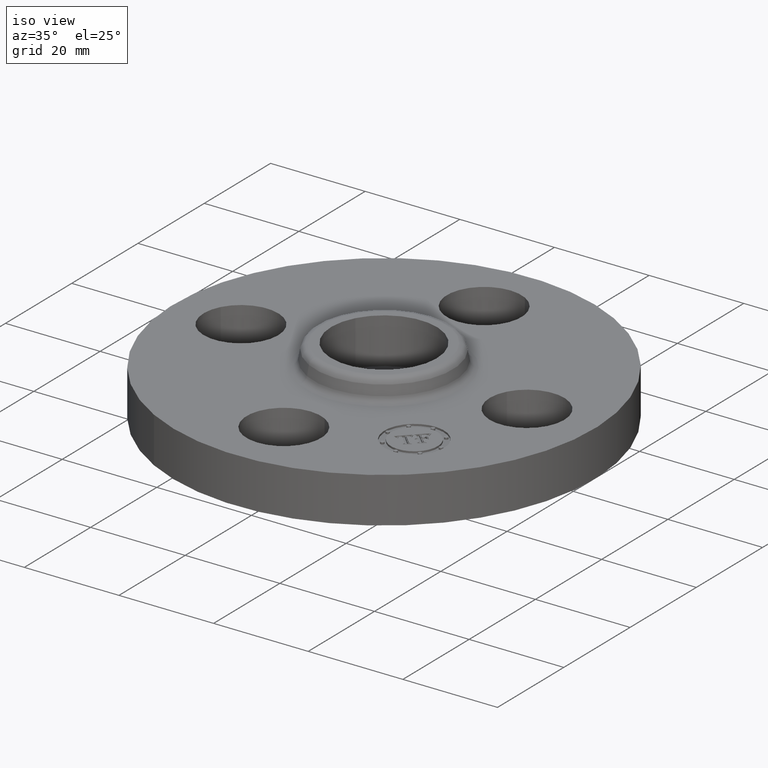
[diagram: clean part render]
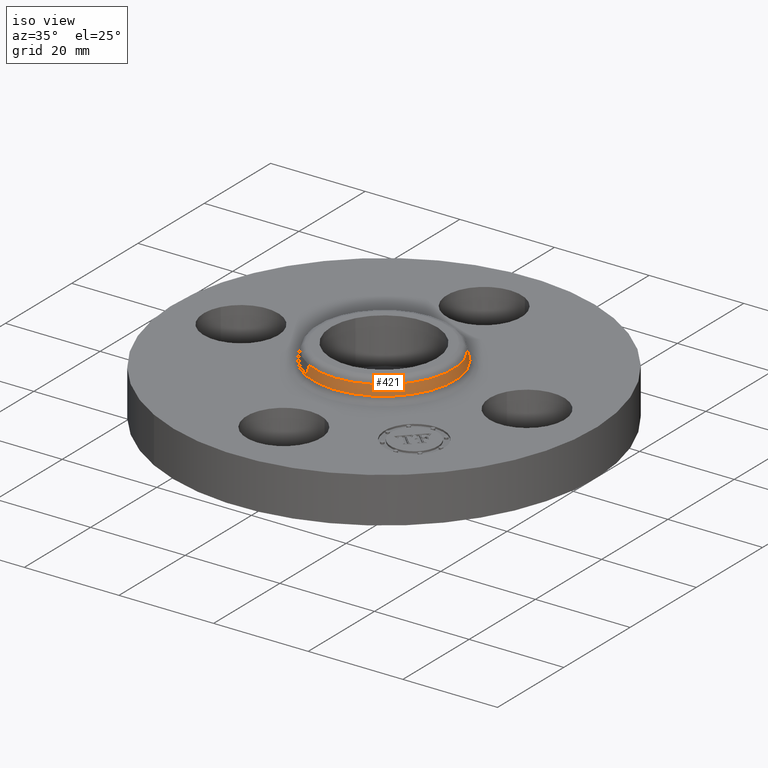
[diagram: same view with one face highlighted and labeled with its STEP entity id]
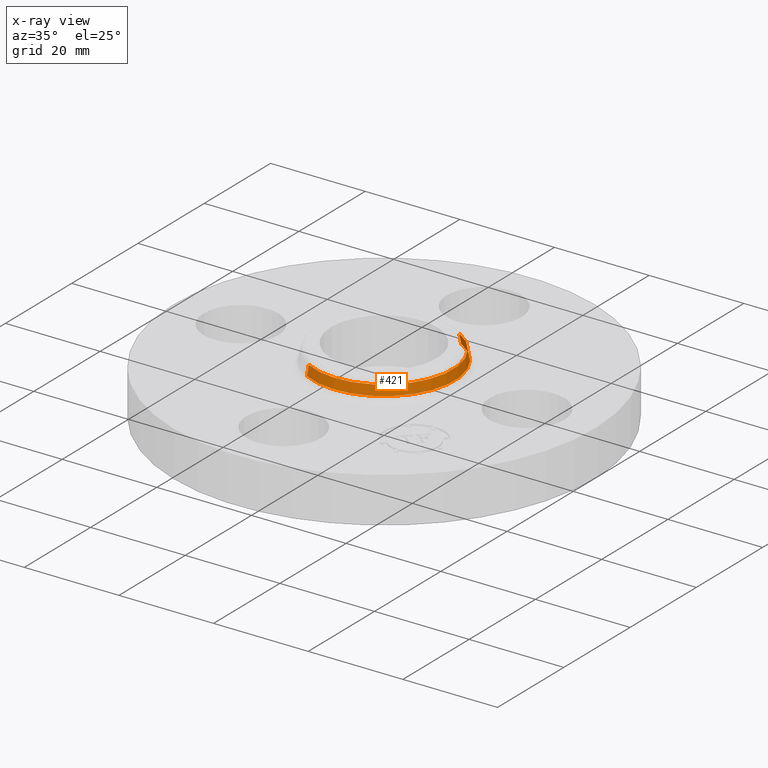
[diagram: x-ray of the same camera — body ghosted, the highlighted face saturated]
A machine part, iso view. The second image highlights one B-rep face of the part: STEP entity #421.
The next image is the same camera in x-ray: the body ghosted, the highlighted face saturated — about 0% of this face is hidden behind the body in this view.
In plain terms, the highlighted conical surface has half-angle 10 deg.
Its self-contained STEP definition (entity closure, byte-faithful):
#357=AXIS2_PLACEMENT_3D('Circle Axis2P3D',#355,#356,$) ;
#394=AXIS2_PLACEMENT_3D('Cone Axis2P3D',#391,#392,#393) ;
#405=AXIS2_PLACEMENT_3D('Circle Axis2P3D',#403,#404,$) ;
#352=CARTESIAN_POINT('Vertex',(0.281066823783,0.514489369916,0.429581109342)) ;
#355=CARTESIAN_POINT('Axis2P3D Location',(0.,0.,0.429581109342)) ;
#359=CARTESIAN_POINT('Vertex',(-0.281066823783,-0.514489369916,0.429581109342)) ;
#391=CARTESIAN_POINT('Axis2P3D Location',(0.,0.,0.510418890662)) ;
#396=CARTESIAN_POINT('Line Origine',(0.277649986278,0.508234890815,0.470000000002)) ;
#400=CARTESIAN_POINT('Vertex',(0.274233148773,0.501980411715,0.510418890662)) ;
#403=CARTESIAN_POINT('Axis2P3D Location',(0.,0.,0.510418890662)) ;
#407=CARTESIAN_POINT('Vertex',(-0.274233148773,-0.501980411715,0.510418890662)) ;
#410=CARTESIAN_POINT('Line Origine',(-0.277649986278,-0.508234890815,0.470000000002)) ;
#356=DIRECTION('Axis2P3D Direction',(0.,0.,-0.0393700787402)) ;
#392=DIRECTION('Axis2P3D Direction',(0.,0.,-0.0393700787402)) ;
#393=DIRECTION('Axis2P3D XDirection',(-0.0188750212049,-0.0345504945626,0.)) ;
#397=DIRECTION('Vector Direction',(0.00327761303565,0.00599963041829,-0.03877195878)) ;
#404=DIRECTION('Axis2P3D Direction',(0.,0.,-0.0393700787402)) ;
#411=DIRECTION('Vector Direction',(-0.00327761303565,-0.00599963041829,-0.03877195878)) ;
#398=VECTOR('Line Direction',#397,0.0393700787402) ;
#412=VECTOR('Line Direction',#411,0.0393700787402) ;
#416=ORIENTED_EDGE('',*,*,#361,.F.) ;
#417=ORIENTED_EDGE('',*,*,#402,.T.) ;
#418=ORIENTED_EDGE('',*,*,#409,.T.) ;
#419=ORIENTED_EDGE('',*,*,#414,.F.) ;
#421=ADVANCED_FACE('PartBody',(#420),#395,.T.) ;
#358=CIRCLE('generated circle',#357,0.586257512692) ;
#406=CIRCLE('generated circle',#405,0.572003630785) ;
#395=CONICAL_SURFACE('Cone',#394,0.572003630785,0.174532925199) ;
#361=EDGE_CURVE('',#353,#360,#358,.T.) ;
#402=EDGE_CURVE('',#353,#401,#399,.F.) ;
#409=EDGE_CURVE('',#401,#408,#406,.T.) ;
#414=EDGE_CURVE('',#360,#408,#413,.F.) ;
#415=EDGE_LOOP('',(#416,#417,#418,#419)) ;
#420=FACE_OUTER_BOUND('',#415,.T.) ;
#399=LINE('Line',#396,#398) ;
#413=LINE('Line',#410,#412) ;
#353=VERTEX_POINT('',#352) ;
#360=VERTEX_POINT('',#359) ;
#401=VERTEX_POINT('',#400) ;
#408=VERTEX_POINT('',#407) ;